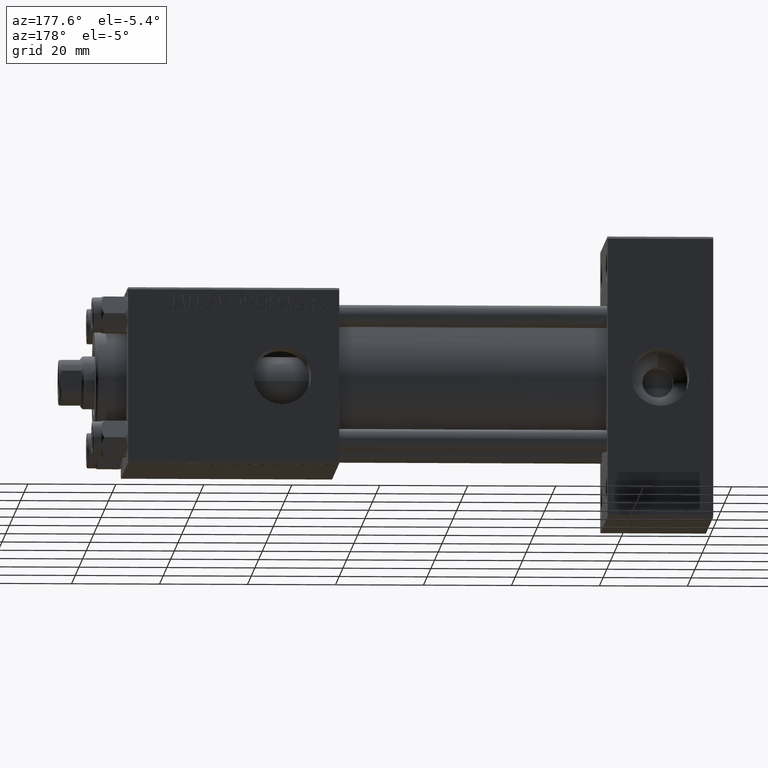
[diagram: clean part render]
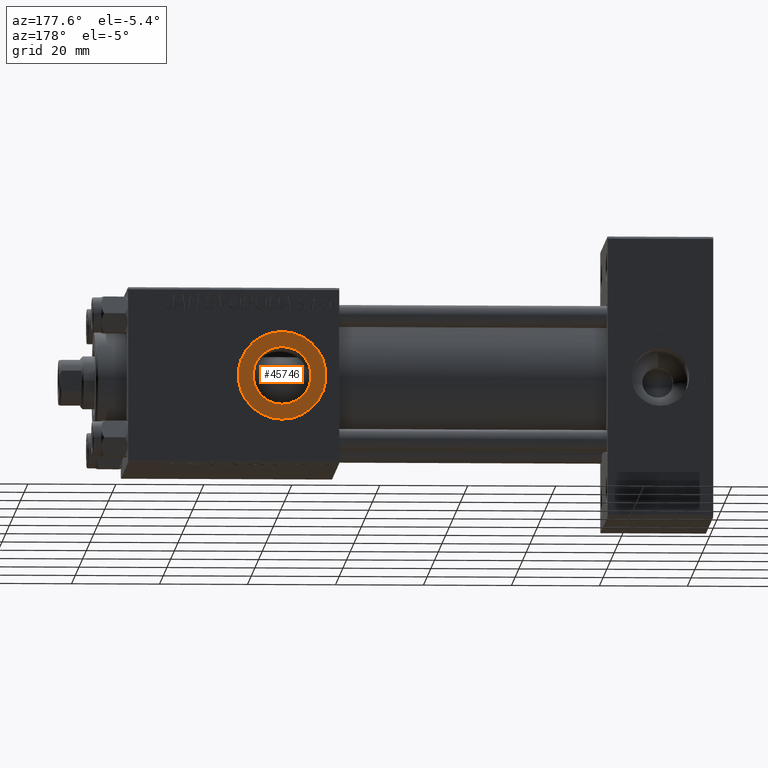
[diagram: same view with one face highlighted and labeled with its STEP entity id]
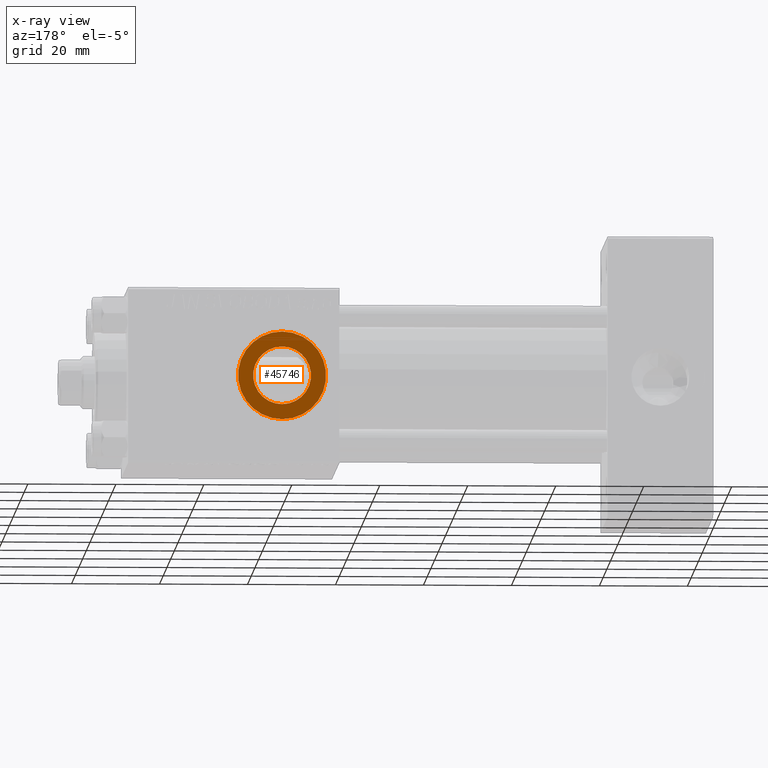
[diagram: x-ray of the same camera — body ghosted, the highlighted face saturated]
A machine part, auxiliary view. The second image highlights one B-rep face of the part: STEP entity #45746.
The next image is the same camera in x-ray: the body ghosted, the highlighted face saturated — about 0% of this face is hidden behind the body in this view.
In plain terms, the highlighted planar face has unit normal (0, 1, 0).
Its self-contained STEP definition (entity closure, byte-faithful):
#649 = DIRECTION ( 'NONE',  ( 0.000000000000000000, 0.000000000000000000, 1.000000000000000000 ) ) ;
#2982 = PLANE ( 'NONE',  #11571 ) ;
#4869 = CIRCLE ( 'NONE', #25823, 6.580000000000002736 ) ;
#5450 = VERTEX_POINT ( 'NONE', #13231 ) ;
#8165 = ORIENTED_EDGE ( 'NONE', *, *, #32899, .T. ) ;
#11571 = AXIS2_PLACEMENT_3D ( 'NONE', #48689, #49181, #30481 ) ;
#11946 = AXIS2_PLACEMENT_3D ( 'NONE', #33508, #48402, #17599 ) ;
#12879 = CARTESIAN_POINT ( 'NONE',  ( 97.99999999999998579, 19.79999999999999716, -6.580000000000002736 ) ) ;
#13231 = CARTESIAN_POINT ( 'NONE',  ( 97.99999999999998579, 19.79999999999999716, 6.580000000000002736 ) ) ;
#13593 = EDGE_CURVE ( 'NONE', #5450, #23181, #4869, .T. ) ;
#17599 = DIRECTION ( 'NONE',  ( 0.000000000000000000, 0.000000000000000000, 1.000000000000000000 ) ) ;
#17772 = EDGE_LOOP ( 'NONE', ( #48743, #47424 ) ) ;
#18002 = CIRCLE ( 'NONE', #45438, 9.999999999999994671 ) ;
#18035 = AXIS2_PLACEMENT_3D ( 'NONE', #23570, #38973, #37983 ) ;
#18952 = CARTESIAN_POINT ( 'NONE',  ( 97.99999999999998579, 19.79999999999999716, 0.000000000000000000 ) ) ;
#20120 = VERTEX_POINT ( 'NONE', #32513 ) ;
#20761 = EDGE_CURVE ( 'NONE', #47129, #20120, #18002, .T. ) ;
#21173 = EDGE_CURVE ( 'NONE', #23181, #5450, #38192, .T. ) ;
#23181 = VERTEX_POINT ( 'NONE', #12879 ) ;
#23570 = CARTESIAN_POINT ( 'NONE',  ( 97.99999999999998579, 19.79999999999999716, 0.000000000000000000 ) ) ;
#23875 = CARTESIAN_POINT ( 'NONE',  ( 97.99999999999998579, 19.79999999999999716, 0.000000000000000000 ) ) ;
#25823 = AXIS2_PLACEMENT_3D ( 'NONE', #18952, #31279, #43154 ) ;
#30481 = DIRECTION ( 'NONE',  ( 0.000000000000000000, -0.000000000000000000, 1.000000000000000000 ) ) ;
#31279 = DIRECTION ( 'NONE',  ( 0.000000000000000000, 1.000000000000000000, 0.000000000000000000 ) ) ;
#32513 = CARTESIAN_POINT ( 'NONE',  ( 97.99999999999998579, 19.79999999999999716, -9.999999999999994671 ) ) ;
#32899 = EDGE_CURVE ( 'NONE', #20120, #47129, #49047, .T. ) ;
#33283 = FACE_BOUND ( 'NONE', #17772, .T. ) ;
#33508 = CARTESIAN_POINT ( 'NONE',  ( 97.99999999999998579, 19.79999999999999716, 0.000000000000000000 ) ) ;
#36520 = ORIENTED_EDGE ( 'NONE', *, *, #20761, .T. ) ;
#37983 = DIRECTION ( 'NONE',  ( 0.000000000000000000, 0.000000000000000000, 1.000000000000000000 ) ) ;
#38192 = CIRCLE ( 'NONE', #18035, 6.580000000000002736 ) ;
#38973 = DIRECTION ( 'NONE',  ( 0.000000000000000000, 1.000000000000000000, 0.000000000000000000 ) ) ;
#42102 = FACE_OUTER_BOUND ( 'NONE', #43024, .T. ) ;
#43024 = EDGE_LOOP ( 'NONE', ( #36520, #8165 ) ) ;
#43154 = DIRECTION ( 'NONE',  ( 0.000000000000000000, 0.000000000000000000, 1.000000000000000000 ) ) ;
#45091 = CARTESIAN_POINT ( 'NONE',  ( 97.99999999999998579, 19.79999999999999716, 9.999999999999994671 ) ) ;
#45438 = AXIS2_PLACEMENT_3D ( 'NONE', #23875, #46354, #649 ) ;
#45746 = ADVANCED_FACE ( 'NONE', ( #33283, #42102 ), #2982, .T. ) ;
#46354 = DIRECTION ( 'NONE',  ( 0.000000000000000000, 1.000000000000000000, 0.000000000000000000 ) ) ;
#47129 = VERTEX_POINT ( 'NONE', #45091 ) ;
#47424 = ORIENTED_EDGE ( 'NONE', *, *, #21173, .F. ) ;
#48402 = DIRECTION ( 'NONE',  ( 0.000000000000000000, 1.000000000000000000, 0.000000000000000000 ) ) ;
#48689 = CARTESIAN_POINT ( 'NONE',  ( 97.99999999999998579, 19.79999999999999716, 0.000000000000000000 ) ) ;
#48743 = ORIENTED_EDGE ( 'NONE', *, *, #13593, .F. ) ;
#49047 = CIRCLE ( 'NONE', #11946, 9.999999999999994671 ) ;
#49181 = DIRECTION ( 'NONE',  ( 0.000000000000000000, 1.000000000000000000, 0.000000000000000000 ) ) ;